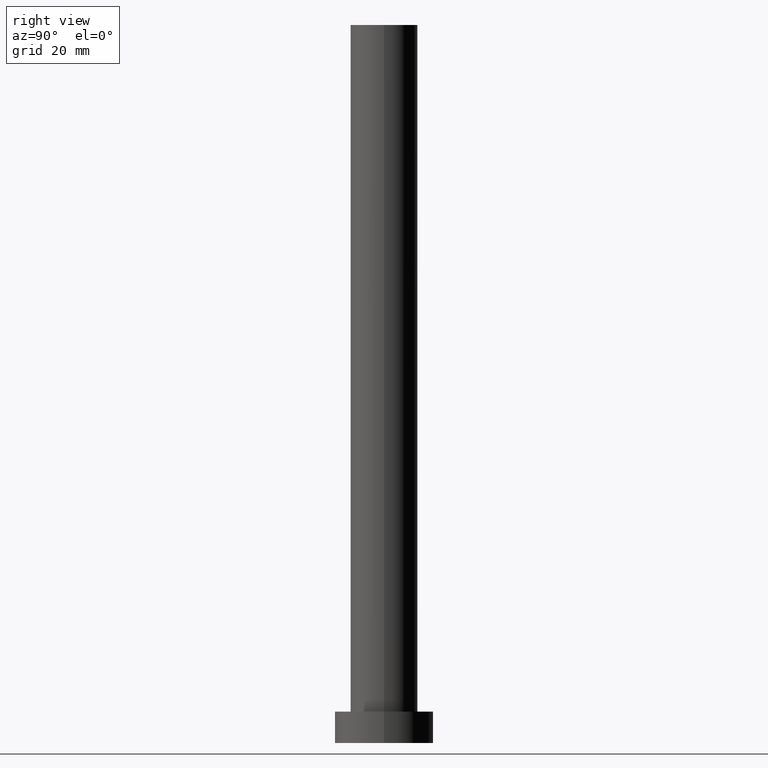
[diagram: clean part render]
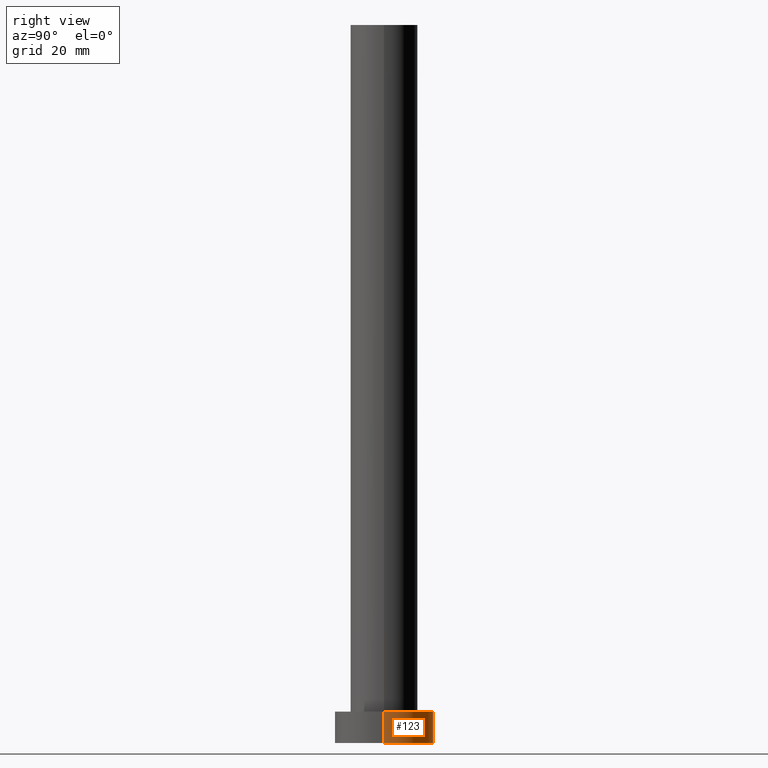
[diagram: same view with one face highlighted and labeled with its STEP entity id]
A machine part, right view. The second image highlights one B-rep face of the part: STEP entity #123.
In plain terms, the highlighted cylindrical surface (partial cylindrical patch) has radius 11 mm, axis along (-0, -0, -1).
Its self-contained STEP definition (entity closure, byte-faithful):
#4 = CIRCLE ( 'NONE', #38, 11.00000000000000000 ) ;
#8 = EDGE_CURVE ( 'NONE', #103, #221, #65, .T. ) ;
#15 = CARTESIAN_POINT ( 'NONE',  ( 0.000000000000000000, 0.000000000000000000, 7.000000000000000000 ) ) ;
#17 = DIRECTION ( 'NONE',  ( 1.000000000000000000, 0.000000000000000000, 0.000000000000000000 ) ) ;
#33 = ORIENTED_EDGE ( 'NONE', *, *, #8, .T. ) ;
#38 = AXIS2_PLACEMENT_3D ( 'NONE', #249, #194, #17 ) ;
#49 = EDGE_CURVE ( 'NONE', #58, #245, #215, .T. ) ;
#50 = ORIENTED_EDGE ( 'NONE', *, *, #151, .F. ) ;
#56 = VECTOR ( 'NONE', #232, 1000.000000000000000 ) ;
#58 = VERTEX_POINT ( 'NONE', #135 ) ;
#65 = LINE ( 'NONE', #191, #56 ) ;
#84 = DIRECTION ( 'NONE',  ( -0.000000000000000000, -0.000000000000000000, -1.000000000000000000 ) ) ;
#92 = CARTESIAN_POINT ( 'NONE',  ( 11.00000000000000000, 1.347111479062088405E-15, 0.000000000000000000 ) ) ;
#100 = DIRECTION ( 'NONE',  ( 0.000000000000000000, 0.000000000000000000, 1.000000000000000000 ) ) ;
#103 = VERTEX_POINT ( 'NONE', #209 ) ;
#108 = AXIS2_PLACEMENT_3D ( 'NONE', #15, #100, #176 ) ;
#112 = ORIENTED_EDGE ( 'NONE', *, *, #133, .T. ) ;
#114 = DIRECTION ( 'NONE',  ( -1.000000000000000000, 0.000000000000000000, 0.000000000000000000 ) ) ;
#115 = AXIS2_PLACEMENT_3D ( 'NONE', #195, #198, #114 ) ;
#122 = FACE_OUTER_BOUND ( 'NONE', #202, .T. ) ;
#123 = ADVANCED_FACE ( 'NONE', ( #122 ), #213, .T. ) ;
#133 = EDGE_CURVE ( 'NONE', #221, #245, #4, .T. ) ;
#135 = CARTESIAN_POINT ( 'NONE',  ( -11.00000000000000000, 0.000000000000000000, 7.000000000000000000 ) ) ;
#141 = CARTESIAN_POINT ( 'NONE',  ( -11.00000000000000000, 0.000000000000000000, 7.000000000000000000 ) ) ;
#151 = EDGE_CURVE ( 'NONE', #103, #58, #183, .T. ) ;
#176 = DIRECTION ( 'NONE',  ( 1.000000000000000000, 0.000000000000000000, 0.000000000000000000 ) ) ;
#183 = CIRCLE ( 'NONE', #108, 11.00000000000000000 ) ;
#191 = CARTESIAN_POINT ( 'NONE',  ( 11.00000000000000000, 1.347111479062088405E-15, 7.000000000000000000 ) ) ;
#194 = DIRECTION ( 'NONE',  ( 0.000000000000000000, 0.000000000000000000, 1.000000000000000000 ) ) ;
#195 = CARTESIAN_POINT ( 'NONE',  ( 0.000000000000000000, 0.000000000000000000, 7.000000000000000000 ) ) ;
#198 = DIRECTION ( 'NONE',  ( -0.000000000000000000, -0.000000000000000000, -1.000000000000000000 ) ) ;
#202 = EDGE_LOOP ( 'NONE', ( #50, #33, #112, #247 ) ) ;
#209 = CARTESIAN_POINT ( 'NONE',  ( 11.00000000000000000, 1.347111479062088405E-15, 7.000000000000000000 ) ) ;
#213 = CYLINDRICAL_SURFACE ( 'NONE', #115, 11.00000000000000000 ) ;
#215 = LINE ( 'NONE', #141, #223 ) ;
#221 = VERTEX_POINT ( 'NONE', #92 ) ;
#223 = VECTOR ( 'NONE', #84, 1000.000000000000000 ) ;
#232 = DIRECTION ( 'NONE',  ( -0.000000000000000000, -0.000000000000000000, -1.000000000000000000 ) ) ;
#245 = VERTEX_POINT ( 'NONE', #248 ) ;
#247 = ORIENTED_EDGE ( 'NONE', *, *, #49, .F. ) ;
#248 = CARTESIAN_POINT ( 'NONE',  ( -11.00000000000000000, 0.000000000000000000, 0.000000000000000000 ) ) ;
#249 = CARTESIAN_POINT ( 'NONE',  ( 0.000000000000000000, 0.000000000000000000, 0.000000000000000000 ) ) ;